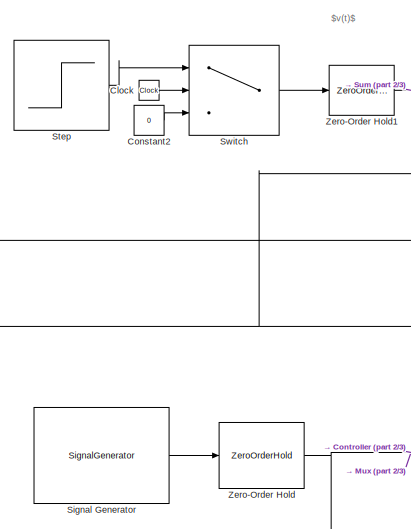
[diagram: root canvas - part 1/3, top left region]
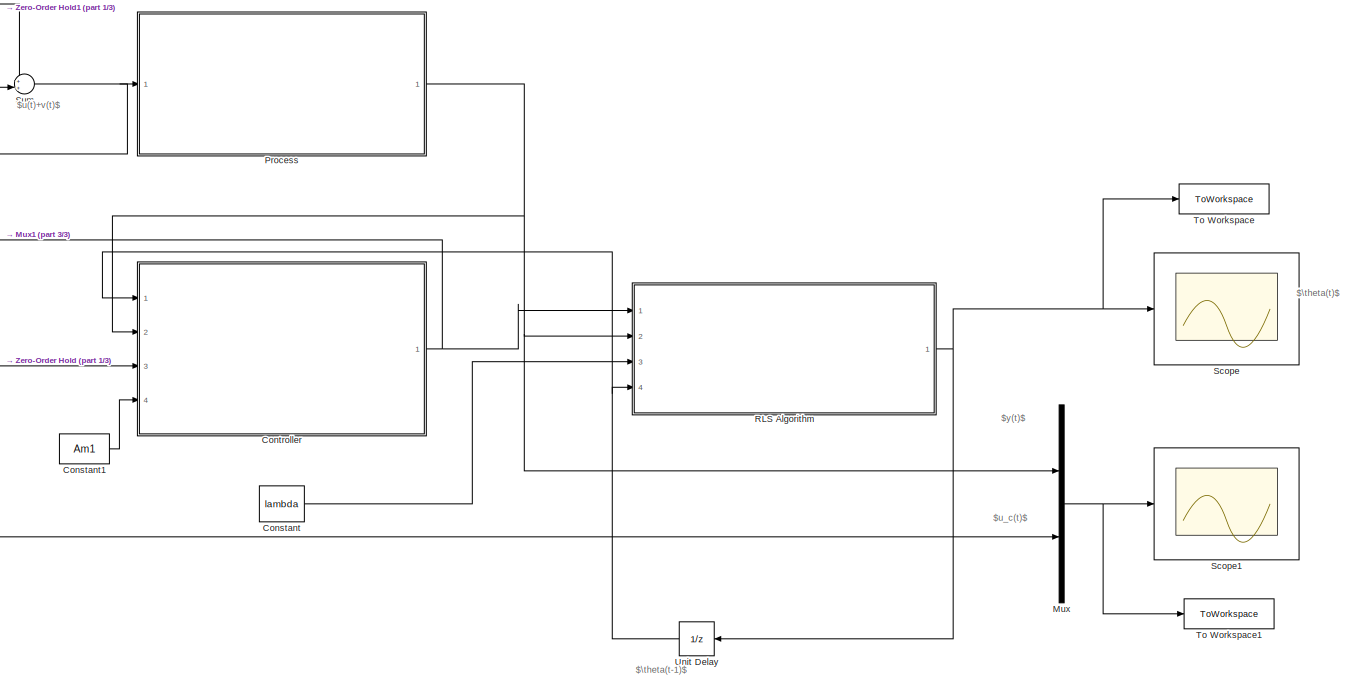
[diagram: root canvas - part 2/3, central region]
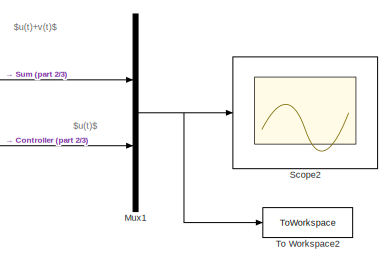
[diagram: root canvas - part 3/3, bottom right region]
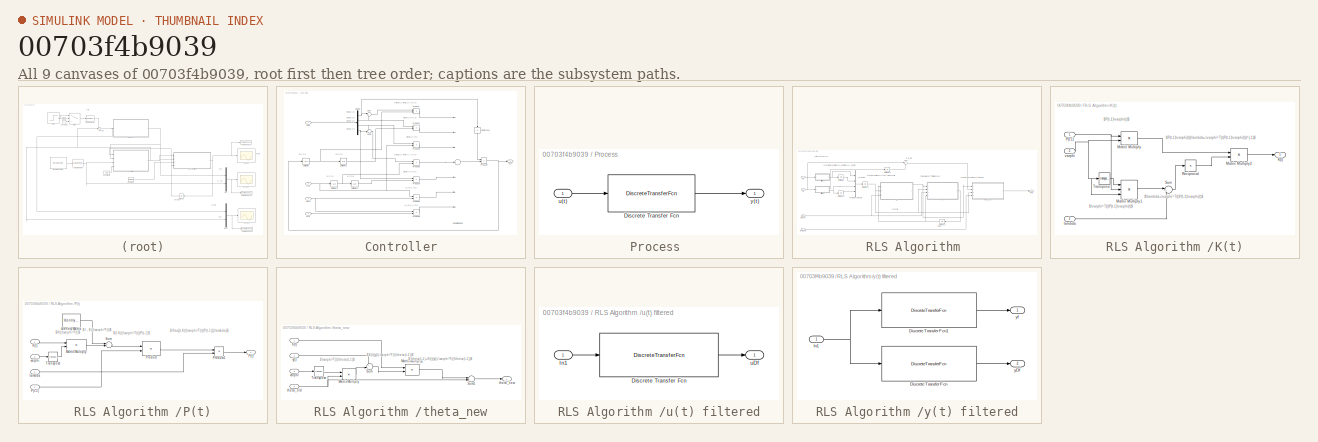
[diagram: thumbnail index - all 9 canvases of the model, root first then tree order]
MODEL slx_00703f4b9039
KIND model
CONFIG AbsTol = auto
CONFIG EnableMultiTasking = off
CONFIG FixedStep = auto
CONFIG MaxStep = auto
CONFIG MinStep = auto
CONFIG RelTol = 1e-3
CONFIG SampleTimeConstraint = Unconstrained
CONFIG Solver = VariableStepAuto
CONFIG SolverName = VariableStepAuto
CONFIG StartTime = 0.0
CONFIG StopTime = 200
BLOCK [Clock] Clock
BLOCK [Constant] Constant
  Value = lambda
BLOCK [Constant] Constant1
  Value = Am1
BLOCK [Constant] Constant2
  Value = 0
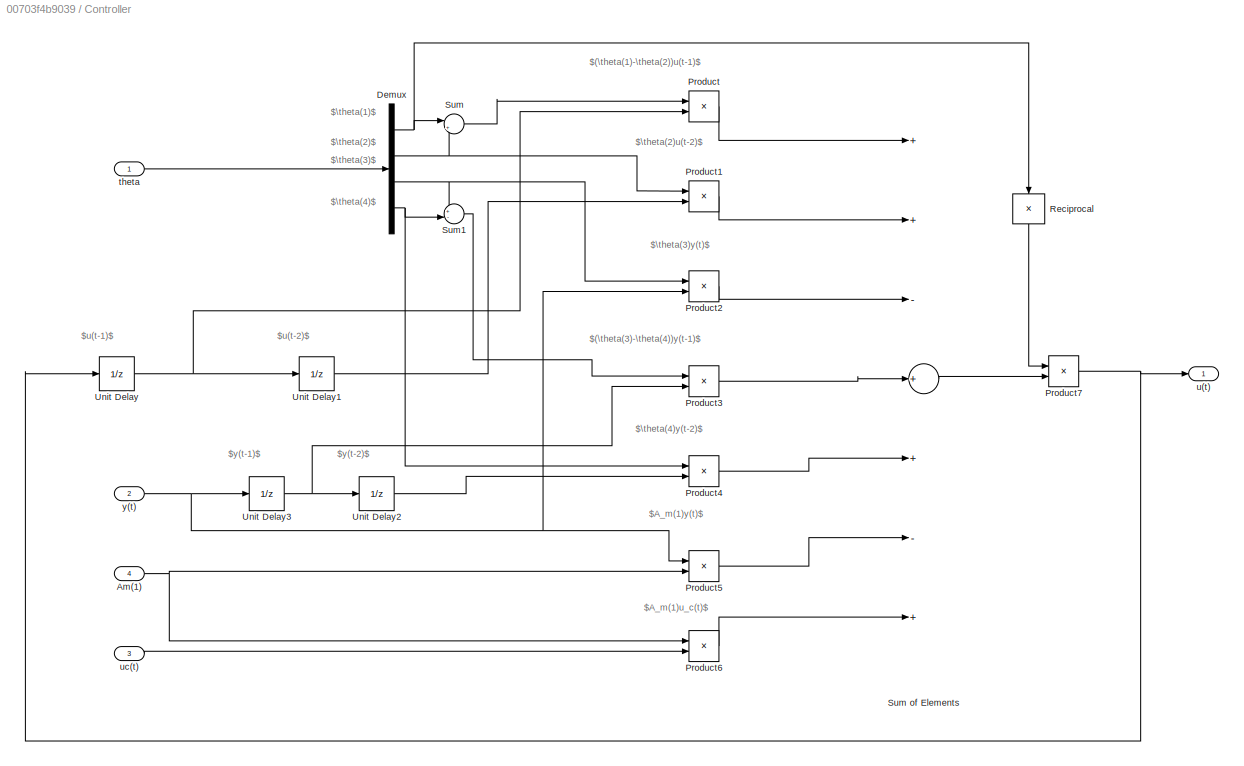
BLOCK [SubSystem] Controller
  Ports = [4, 1]
  RequestExecContextInheritance = off
BLOCK [Inport] Controller/Am(1)
  IconDisplay = Port number
  Port = 4
BLOCK [Demux] Controller/Demux
  DisplayOption = bar
  Ports = [1, 4]
BLOCK [Product] Controller/Product
  InputSameDT = off
  OutDataTypeStr = Inherit: Inherit via internal rule
  Ports = [2, 1]
  RndMeth = Floor
  SaturateOnIntegerOverflow = off
BLOCK [Product] Controller/Product1
  InputSameDT = off
  OutDataTypeStr = Inherit: Inherit via internal rule
  Ports = [2, 1]
  RndMeth = Floor
  SaturateOnIntegerOverflow = off
BLOCK [Product] Controller/Product2
  InputSameDT = off
  OutDataTypeStr = Inherit: Inherit via internal rule
  Ports = [2, 1]
  RndMeth = Floor
  SaturateOnIntegerOverflow = off
BLOCK [Product] Controller/Product3
  InputSameDT = off
  OutDataTypeStr = Inherit: Inherit via internal rule
  Ports = [2, 1]
  RndMeth = Floor
  SaturateOnIntegerOverflow = off
BLOCK [Product] Controller/Product4
  InputSameDT = off
  OutDataTypeStr = Inherit: Inherit via internal rule
  Ports = [2, 1]
  RndMeth = Floor
  SaturateOnIntegerOverflow = off
BLOCK [Product] Controller/Product5
  InputSameDT = off
  OutDataTypeStr = Inherit: Inherit via internal rule
  Ports = [2, 1]
  RndMeth = Floor
  SaturateOnIntegerOverflow = off
BLOCK [Product] Controller/Product6
  InputSameDT = off
  OutDataTypeStr = Inherit: Inherit via internal rule
  Ports = [2, 1]
  RndMeth = Floor
  SaturateOnIntegerOverflow = off
BLOCK [Product] Controller/Product7
  InputSameDT = off
  OutDataTypeStr = Inherit: Inherit via internal rule
  Ports = [2, 1]
  RndMeth = Floor
  SaturateOnIntegerOverflow = off
BLOCK [Product] Controller/Reciprocal
  InputSameDT = off
  Inputs = /
  OutDataTypeStr = Inherit: Inherit via internal rule
  Ports = [1, 1]
  RndMeth = Floor
  SaturateOnIntegerOverflow = off
BLOCK [Sum] Controller/Sum
  IconShape = round
  InputSameDT = off
  Inputs = |+-
  OutDataTypeStr = Inherit: Inherit via internal rule
  Ports = [2, 1]
  SaturateOnIntegerOverflow = off
BLOCK [Sum] Controller/Sum of Elements
  InputSameDT = off
  Inputs = ++-++-+
  OutDataTypeStr = Inherit: Inherit via internal rule
  Ports = [7, 1]
  SaturateOnIntegerOverflow = off
BLOCK [Sum] Controller/Sum1
  IconShape = round
  InputSameDT = off
  Inputs = +-|
  OutDataTypeStr = Inherit: Inherit via internal rule
  Ports = [2, 1]
  SaturateOnIntegerOverflow = off
BLOCK [UnitDelay] Controller/Unit Delay
  HasFrameUpgradeWarning = on
  SampleTime = -1
BLOCK [UnitDelay] Controller/Unit Delay1
  HasFrameUpgradeWarning = on
  SampleTime = -1
BLOCK [UnitDelay] Controller/Unit Delay2
  HasFrameUpgradeWarning = on
  SampleTime = -1
BLOCK [UnitDelay] Controller/Unit Delay3
  HasFrameUpgradeWarning = on
  SampleTime = -1
BLOCK [Inport] Controller/theta
  IconDisplay = Port number
BLOCK [Outport] Controller/u(t)
  IconDisplay = Port number
BLOCK [Inport] Controller/uc(t)
  IconDisplay = Port number
  Port = 3
BLOCK [Inport] Controller/y(t)
  IconDisplay = Port number
  Port = 2
BLOCK [Mux] Mux
  DisplayOption = bar
  Inputs = 2
  Ports = [2, 1]
BLOCK [Mux] Mux1
  DisplayOption = bar
  Inputs = 2
  Ports = [2, 1]
BLOCK [SubSystem] Process 
  Ports = [1, 1]
  RequestExecContextInheritance = off
BLOCK [DiscreteTransferFcn] Process /Discrete Transfer Fcn
  Denominator = [1 -1.6065 0.6065]
  InputPortMap = u0
  Numerator = [0.1065 0.0902]
  Ports = [1, 1]
BLOCK [Inport] Process /u(t)
  IconDisplay = Port number
BLOCK [Outport] Process /y(t)
  IconDisplay = Port number
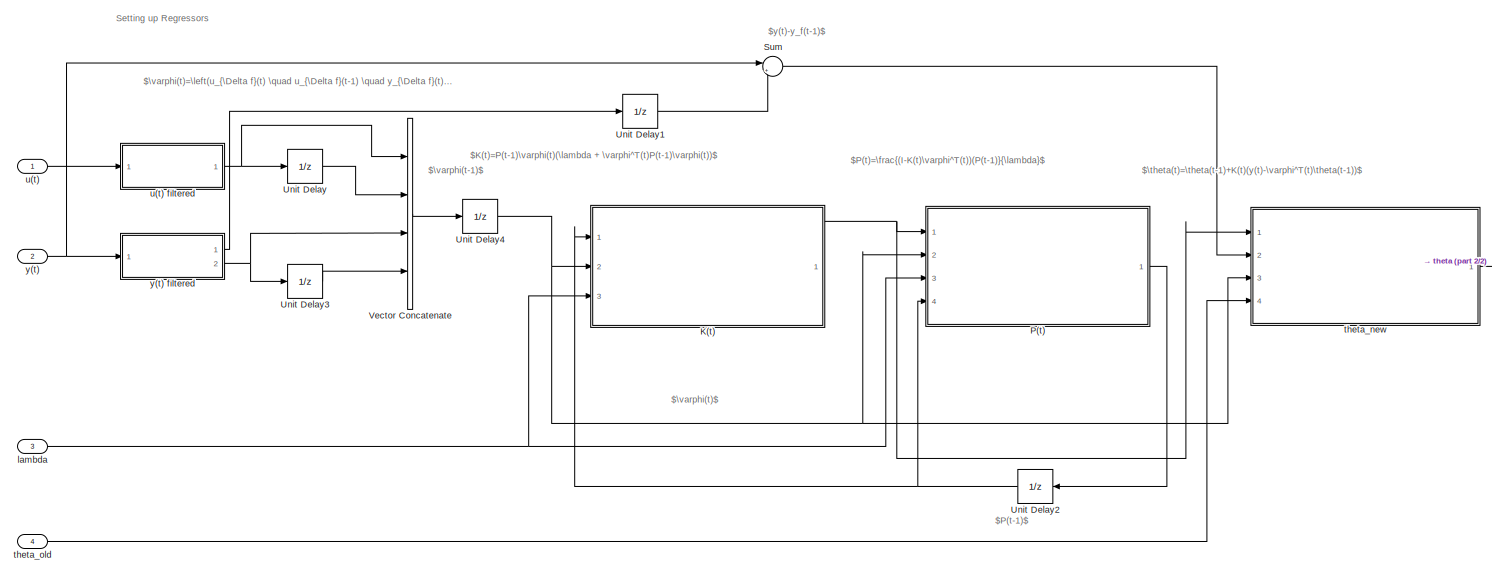
[diagram: RLS Algorithm  - part 1/2, most of the canvas]
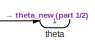
[diagram: RLS Algorithm  - part 2/2, middle right region]
BLOCK [SubSystem] RLS Algorithm 
  Ports = [4, 1]
  RequestExecContextInheritance = off
BLOCK [SubSystem] RLS Algorithm /K(t)
  Ports = [3, 1]
  RequestExecContextInheritance = off
BLOCK [Outport] RLS Algorithm /K(t)/K(t)
  IconDisplay = Port number
BLOCK [Product] RLS Algorithm /K(t)/Matrix Multiply
  InputSameDT = off
  Multiplication = Matrix(*)
  OutDataTypeStr = Inherit: Inherit via internal rule
  Ports = [2, 1]
  RndMeth = Floor
  SaturateOnIntegerOverflow = off
BLOCK [Product] RLS Algorithm /K(t)/Matrix Multiply1
  InputSameDT = off
  Inputs = 3
  Multiplication = Matrix(*)
  OutDataTypeStr = Inherit: Inherit via internal rule
  Ports = [3, 1]
  RndMeth = Floor
  SaturateOnIntegerOverflow = off
BLOCK [Product] RLS Algorithm /K(t)/Matrix Multiply2
  InputSameDT = off
  Multiplication = Matrix(*)
  OutDataTypeStr = Inherit: Inherit via internal rule
  Ports = [2, 1]
  RndMeth = Floor
  SaturateOnIntegerOverflow = off
BLOCK [Inport] RLS Algorithm /K(t)/P(t-1)
  IconDisplay = Port number
BLOCK [Product] RLS Algorithm /K(t)/Reciprocal
  InputSameDT = off
  Inputs = /
  Multiplication = Matrix(*)
  OutDataTypeStr = Inherit: Inherit via internal rule
  Ports = [1, 1]
BLOCK [Sum] RLS Algorithm /K(t)/Sum
  IconShape = round
  InputSameDT = off
  Inputs = |++
  OutDataTypeStr = Inherit: Inherit via internal rule
  Ports = [2, 1]
  SaturateOnIntegerOverflow = off
BLOCK [Math] RLS Algorithm /K(t)/Transpose
  Operator = transpose
  Ports = [1, 1]
  SignedPower = off
BLOCK [Inport] RLS Algorithm /K(t)/lambda
  IconDisplay = Port number
  Port = 3
BLOCK [Inport] RLS Algorithm /K(t)/varphi
  IconDisplay = Port number
  Port = 2
BLOCK [SubSystem] RLS Algorithm /P(t)
  Ports = [4, 1]
  RequestExecContextInheritance = off
BLOCK [Reference] RLS Algorithm /P(t)/Identity Matrix  REF=dspmtrx3/Identity Matrix
  Ports = [0, 1]
  SourceBlock = dspmtrx3/Identity Matrix
  SourceProductBaseCode = DS
  SourceProductName = DSP System Toolbox
  SourceType = Identity Matrix
BLOCK [Inport] RLS Algorithm /P(t)/K(t)
  IconDisplay = Port number
BLOCK [Product] RLS Algorithm /P(t)/Matrix Multiply
  InputSameDT = off
  Multiplication = Matrix(*)
  OutDataTypeStr = Inherit: Inherit via internal rule
  Ports = [2, 1]
  RndMeth = Floor
  SaturateOnIntegerOverflow = off
BLOCK [Outport] RLS Algorithm /P(t)/P(t)
  IconDisplay = Port number
BLOCK [Inport] RLS Algorithm /P(t)/P(t-1)
  IconDisplay = Port number
  Port = 4
BLOCK [Product] RLS Algorithm /P(t)/Product
  InputSameDT = off
  Multiplication = Matrix(*)
  OutDataTypeStr = Inherit: Inherit via internal rule
  Ports = [2, 1]
  RndMeth = Floor
  SaturateOnIntegerOverflow = off
BLOCK [Product] RLS Algorithm /P(t)/Product1
  InputSameDT = off
  Inputs = */
  OutDataTypeStr = Inherit: Inherit via internal rule
  Ports = [2, 1]
  RndMeth = Floor
  SaturateOnIntegerOverflow = off
BLOCK [Sum] RLS Algorithm /P(t)/Sum
  IconShape = round
  InputSameDT = off
  Inputs = +-|
  OutDataTypeStr = Inherit: Inherit via internal rule
  Ports = [2, 1]
  SaturateOnIntegerOverflow = off
BLOCK [Math] RLS Algorithm /P(t)/Transpose
  Operator = transpose
  Ports = [1, 1]
  SignedPower = off
BLOCK [Inport] RLS Algorithm /P(t)/lambda
  IconDisplay = Port number
  Port = 3
BLOCK [Inport] RLS Algorithm /P(t)/varphi
  IconDisplay = Port number
  Port = 2
BLOCK [Sum] RLS Algorithm /Sum
  IconShape = round
  InputSameDT = off
  Inputs = |+-
  OutDataTypeStr = Inherit: Inherit via internal rule
  Ports = [2, 1]
  SaturateOnIntegerOverflow = off
BLOCK [UnitDelay] RLS Algorithm /Unit Delay
  HasFrameUpgradeWarning = on
  SampleTime = -1
BLOCK [UnitDelay] RLS Algorithm /Unit Delay1
  HasFrameUpgradeWarning = on
  SampleTime = -1
BLOCK [UnitDelay] RLS Algorithm /Unit Delay2
  HasFrameUpgradeWarning = on
  InitialCondition = P_0
  SampleTime = -1
BLOCK [UnitDelay] RLS Algorithm /Unit Delay3
  HasFrameUpgradeWarning = on
  SampleTime = -1
BLOCK [UnitDelay] RLS Algorithm /Unit Delay4
  HasFrameUpgradeWarning = on
  SampleTime = -1
BLOCK [Concatenate] RLS Algorithm /Vector Concatenate
  NumInputs = 4
  Ports = [4, 1]
BLOCK [Inport] RLS Algorithm /lambda
  IconDisplay = Port number
  Port = 3
BLOCK [Outport] RLS Algorithm /theta
  IconDisplay = Port number
BLOCK [SubSystem] RLS Algorithm /theta_new
  Ports = [4, 1]
  RequestExecContextInheritance = off
BLOCK [Inport] RLS Algorithm /theta_new/K(t)
  IconDisplay = Port number
BLOCK [Product] RLS Algorithm /theta_new/Matrix Multiply
  InputSameDT = off
  Multiplication = Matrix(*)
  OutDataTypeStr = Inherit: Inherit via internal rule
  Ports = [2, 1]
  RndMeth = Floor
  SaturateOnIntegerOverflow = off
BLOCK [Product] RLS Algorithm /theta_new/Matrix Multiply1
  InputSameDT = off
  Multiplication = Matrix(*)
  OutDataTypeStr = Inherit: Inherit via internal rule
  Ports = [2, 1]
  RndMeth = Floor
  SaturateOnIntegerOverflow = off
BLOCK [Sum] RLS Algorithm /theta_new/Sum
  IconShape = round
  InputSameDT = off
  Inputs = +|-
  OutDataTypeStr = Inherit: Inherit via internal rule
  Ports = [2, 1]
  SaturateOnIntegerOverflow = off
BLOCK [Sum] RLS Algorithm /theta_new/Sum1
  IconShape = round
  InputSameDT = off
  Inputs = |++
  OutDataTypeStr = Inherit: Inherit via internal rule
  Ports = [2, 1]
  SaturateOnIntegerOverflow = off
BLOCK [Math] RLS Algorithm /theta_new/Transpose
  Operator = transpose
  Ports = [1, 1]
  SignedPower = off
BLOCK [Outport] RLS Algorithm /theta_new/theta_new
  IconDisplay = Port number
BLOCK [Inport] RLS Algorithm /theta_new/theta_old
  IconDisplay = Port number
  Port = 4
BLOCK [Inport] RLS Algorithm /theta_new/varphi
  IconDisplay = Port number
  Port = 3
BLOCK [Inport] RLS Algorithm /theta_new/y(t)
  IconDisplay = Port number
  Port = 2
BLOCK [Inport] RLS Algorithm /theta_old
  IconDisplay = Port number
  Port = 4
BLOCK [Inport] RLS Algorithm /u(t)
  IconDisplay = Port number
BLOCK [SubSystem] RLS Algorithm /u(t) filtered
  Ports = [1, 1]
  RequestExecContextInheritance = off
BLOCK [DiscreteTransferFcn] RLS Algorithm /u(t) filtered/Discrete Transfer Fcn
  Denominator = [1 am1 am2]
  InputPortMap = u0
  Numerator = [1 -1 0]
  Ports = [1, 1]
BLOCK [Inport] RLS Algorithm /u(t) filtered/In1
  IconDisplay = Port number
BLOCK [Outport] RLS Algorithm /u(t) filtered/uDf
  IconDisplay = Port number
BLOCK [Inport] RLS Algorithm /y(t)
  IconDisplay = Port number
  Port = 2
BLOCK [SubSystem] RLS Algorithm /y(t) filtered
  Ports = [1, 2]
  RequestExecContextInheritance = off
BLOCK [DiscreteTransferFcn] RLS Algorithm /y(t) filtered/Discrete Transfer Fcn
  Denominator = [1 am1 am2]
  InputPortMap = u0
  Numerator = [1 -1 0]
  Ports = [1, 1]
BLOCK [DiscreteTransferFcn] RLS Algorithm /y(t) filtered/Discrete Transfer Fcn1
  Denominator = [1 am1 am2]
  InputPortMap = u0
  Numerator = [Am1 0 0]
  Ports = [1, 1]
BLOCK [Inport] RLS Algorithm /y(t) filtered/In1
  IconDisplay = Port number
BLOCK [Outport] RLS Algorithm /y(t) filtered/yDf
  IconDisplay = Port number
  Port = 2
BLOCK [Outport] RLS Algorithm /y(t) filtered/yf
  IconDisplay = Port number
BLOCK [Scope] Scope
  Floating = off
  NumInputPorts = 1
  Ports = [1]
  ScopeSpecificationString = Simulink.scopes.TimeScopeBlockCfg('CurrentConfiguration', extmgr.ConfigurationSet(extmgr.Configuration('Core','General UI',true),extmgr.Configuration('Core','Source UI',true),extmgr.Configuration('Sources','WiredSimulink',true),extmgr.Configuration('Visuals','Time Domain',true,'SerializedDisplays',{struct('MinYLimReal','-2','MaxYLimReal','2','YLabelReal','','MinYLimMag','0.00000','MaxYLimMag','1.5...<+1415ch>
BLOCK [Scope] Scope1
  Floating = off
  NumInputPorts = 1
  Ports = [1]
  ScopeSpecificationString = Simulink.scopes.TimeScopeBlockCfg('CurrentConfiguration', extmgr.ConfigurationSet(extmgr.Configuration('Core','General UI',true),extmgr.Configuration('Core','Source UI',true),extmgr.Configuration('Sources','WiredSimulink',true,'DataLoggingVariableName','ScopeData1'),extmgr.Configuration('Visuals','Time Domain',true,'SerializedDisplays',{struct('MinYLimReal','-2','MaxYLimReal','2','YLabelReal','','...<+1434ch>
BLOCK [Scope] Scope2
  Floating = off
  NumInputPorts = 1
  Ports = [1]
  ScopeSpecificationString = Simulink.scopes.TimeScopeBlockCfg('CurrentConfiguration', extmgr.ConfigurationSet(extmgr.Configuration('Core','General UI',true),extmgr.Configuration('Core','Source UI',true),extmgr.Configuration('Sources','WiredSimulink',true,'DataLoggingVariableName','ScopeData1'),extmgr.Configuration('Visuals','Time Domain',true,'SerializedDisplays',{struct('MinYLimReal','-40','MaxYLimReal','40','YLabelReal',''...<+1432ch>
BLOCK [SignalGenerator] Signal Generator
  Amplitude = -1
  Frequency = 1/40
  Ports = [0, 1]
  WaveForm = square
BLOCK [Step] Step
  SampleTime = Ts
  ZeroCross = off
BLOCK [Sum] Sum
  IconShape = round
  InputSameDT = off
  Inputs = ++|
  OutDataTypeStr = Inherit: Inherit via internal rule
  Ports = [2, 1]
  SaturateOnIntegerOverflow = off
BLOCK [Switch] Switch
  InputSameDT = off
  SaturateOnIntegerOverflow = off
  Threshold = 30
BLOCK [ToWorkspace] To Workspace
  FixptAsFi = on
  MaxDataPoints = inf
  Ports = [1]
  SampleTime = -1
  SaveFormat = Timeseries
  VariableName = simout
BLOCK [ToWorkspace] To Workspace1
  FixptAsFi = on
  MaxDataPoints = inf
  Ports = [1]
  SampleTime = -1
  SaveFormat = Timeseries
  VariableName = simout1
BLOCK [ToWorkspace] To Workspace2
  FixptAsFi = on
  MaxDataPoints = inf
  Ports = [1]
  SampleTime = -1
  SaveFormat = Timeseries
  VariableName = simout2
BLOCK [UnitDelay] Unit Delay
  HasFrameUpgradeWarning = on
  InitialCondition = theta_init
  SampleTime = -1
BLOCK [ZeroOrderHold] Zero-Order Hold
  SampleTime = Ts
BLOCK [ZeroOrderHold] Zero-Order Hold1
  SampleTime = Ts
ANNOTATION (root): $\theta(t)$
ANNOTATION (root): $\theta(t-1)$
ANNOTATION (root): $u(t)$
ANNOTATION (root): $u(t)+v(t)$
ANNOTATION (root): $u_c(t)$
ANNOTATION (root): $v(t)$
ANNOTATION (root): $y(t)$
ANNOTATION Controller: $\theta(1)$
ANNOTATION Controller: $\theta(2)$
ANNOTATION Controller: $\theta(3)$
ANNOTATION Controller: $\theta(4)$
ANNOTATION Controller: $u(t-1)$
ANNOTATION Controller: $(\theta(1)-\theta(2))u(t-1)$
ANNOTATION Controller: $(\theta(3)-\theta(4))y(t-1)$
ANNOTATION Controller: $A_m(1)u_c(t)$
ANNOTATION Controller: $A_m(1)y(t)$
ANNOTATION Controller: $\theta(2)u(t-2)$
ANNOTATION Controller: $\theta(3)y(t)$
ANNOTATION Controller: $\theta(4)y(t-2)$
ANNOTATION Controller: $u(t-2)$
ANNOTATION Controller: $y(t-1)$
ANNOTATION Controller: $y(t-2)$
ANNOTATION RLS Algorithm : Setting up Regressors
ANNOTATION RLS Algorithm : $\varphi(t)=\left(u_{\Delta f}(t) \quad u_{\Delta f}(t-1) \quad y_{\Delta f}(t) \quad y_{\Delta f}(t-1)\right)^T$
ANNOTATION RLS Algorithm : $K(t)=P(t-1)\varphi(t)(\lambda + \varphi^T(t)P(t-1)\varphi(t))$
ANNOTATION RLS Algorithm : $P(t)=\frac{(I-K(t)\varphi^T(t))(P(t-1)}{\lambda}$
ANNOTATION RLS Algorithm : $P(t-1)$
ANNOTATION RLS Algorithm : $\theta(t)=\theta(t-1)+K(t)(y(t)-\varphi^T(t)\theta(t-1))$
ANNOTATION RLS Algorithm : $\varphi(t)$
ANNOTATION RLS Algorithm : $\varphi(t-1)$
ANNOTATION RLS Algorithm : $y(t)-y_f(t-1)$
ANNOTATION RLS Algorithm /K(t): $P(t-1)\varphi(t)$
ANNOTATION RLS Algorithm /K(t): $P(t-1)\varphi(t)(\lambda+\varphi^T(t)P(t-1)\varphi(t))^{-1}$
ANNOTATION RLS Algorithm /K(t): $\lambda+\varphi^T(t)P(t-1)\varphi(t)$
ANNOTATION RLS Algorithm /K(t): $\varphi^T(t)P(t-1)\varphi(t)$
ANNOTATION RLS Algorithm /P(t): $(I-K(t)\varphi^T(t))P(t-1)$
ANNOTATION RLS Algorithm /P(t): $I - K(t)\varphi^T(t)$
ANNOTATION RLS Algorithm /P(t): $K(t)\varphi^T(t)$
ANNOTATION RLS Algorithm /P(t): $\frac{(I-K(t)\varphi^T(t))P(t-1)}{\lambda}$
ANNOTATION RLS Algorithm /theta_new: $K(t)(y(t)-\varphi^T(t)\theta(t-1))$
ANNOTATION RLS Algorithm /theta_new: $\theta(t-1)+K(t)(y(t)-\varphi^T(t)\theta(t-1))$
ANNOTATION RLS Algorithm /theta_new: $\varphi^T(t)\theta(t-1)$
LINE Clock:1 -> Switch:2
LINE Constant1:1 -> Controller:4
LINE Constant2:1 -> Switch:3
LINE Constant:1 -> RLS Algorithm :3
NET Controller/Am(1):1 -> Controller/Product5:2, Controller/Product6:1
NET Controller/Demux:1 -> Controller/Reciprocal:1, Controller/Sum:1
NET Controller/Demux:2 -> Controller/Product1:1, Controller/Sum:2
NET Controller/Demux:3 -> Controller/Product2:1, Controller/Sum1:1
NET Controller/Demux:4 -> Controller/Product4:1, Controller/Sum1:2
LINE Controller/Product1:1 -> Controller/Sum of Elements:2
LINE Controller/Product2:1 -> Controller/Sum of Elements:3
LINE Controller/Product3:1 -> Controller/Sum of Elements:4
LINE Controller/Product4:1 -> Controller/Sum of Elements:5
LINE Controller/Product5:1 -> Controller/Sum of Elements:6
LINE Controller/Product6:1 -> Controller/Sum of Elements:7
NET Controller/Product7:1 -> Controller/Unit Delay:1, Controller/u(t):1
LINE Controller/Product:1 -> Controller/Sum of Elements:1
LINE Controller/Reciprocal:1 -> Controller/Product7:1
LINE Controller/Sum of Elements:1 -> Controller/Product7:2
LINE Controller/Sum1:1 -> Controller/Product3:1
LINE Controller/Sum:1 -> Controller/Product:1
LINE Controller/Unit Delay1:1 -> Controller/Product1:2
LINE Controller/Unit Delay2:1 -> Controller/Product4:2
NET Controller/Unit Delay3:1 -> Controller/Product3:2, Controller/Unit Delay2:1
NET Controller/Unit Delay:1 -> Controller/Product:2, Controller/Unit Delay1:1
LINE Controller/theta:1 -> Controller/Demux:1
LINE Controller/uc(t):1 -> Controller/Product6:2
NET Controller/y(t):1 -> Controller/Product2:2, Controller/Product5:1, Controller/Unit Delay3:1
NET Controller:1 -> Mux1:2, RLS Algorithm :1, Sum:2
NET Mux1:1 -> Scope2:1, To Workspace2:1
NET Mux:1 -> Scope1:1, To Workspace1:1
LINE Process /Discrete Transfer Fcn:1 -> Process /y(t):1
LINE Process /u(t):1 -> Process /Discrete Transfer Fcn:1
NET Process :1 -> Controller:2, Mux:1, RLS Algorithm :2
LINE RLS Algorithm /K(t)/Matrix Multiply1:1 -> RLS Algorithm /K(t)/Sum:1
LINE RLS Algorithm /K(t)/Matrix Multiply2:1 -> RLS Algorithm /K(t)/K(t):1
LINE RLS Algorithm /K(t)/Matrix Multiply:1 -> RLS Algorithm /K(t)/Matrix Multiply2:1
NET RLS Algorithm /K(t)/P(t-1):1 -> RLS Algorithm /K(t)/Matrix Multiply1:2, RLS Algorithm /K(t)/Matrix Multiply:1
LINE RLS Algorithm /K(t)/Reciprocal:1 -> RLS Algorithm /K(t)/Matrix Multiply2:2
LINE RLS Algorithm /K(t)/Sum:1 -> RLS Algorithm /K(t)/Reciprocal:1
LINE RLS Algorithm /K(t)/Transpose:1 -> RLS Algorithm /K(t)/Matrix Multiply1:1
LINE RLS Algorithm /K(t)/lambda:1 -> RLS Algorithm /K(t)/Sum:2
NET RLS Algorithm /K(t)/varphi:1 -> RLS Algorithm /K(t)/Matrix Multiply1:3, RLS Algorithm /K(t)/Matrix Multiply:2, RLS Algorithm /K(t)/Transpose:1
NET RLS Algorithm /K(t):1 -> RLS Algorithm /P(t):1, RLS Algorithm /theta_new:1
LINE RLS Algorithm /P(t)/Identity Matrix:1 -> RLS Algorithm /P(t)/Sum:1
LINE RLS Algorithm /P(t)/K(t):1 -> RLS Algorithm /P(t)/Matrix Multiply:1
LINE RLS Algorithm /P(t)/Matrix Multiply:1 -> RLS Algorithm /P(t)/Sum:2
LINE RLS Algorithm /P(t)/P(t-1):1 -> RLS Algorithm /P(t)/Product:2
LINE RLS Algorithm /P(t)/Product1:1 -> RLS Algorithm /P(t)/P(t):1
LINE RLS Algorithm /P(t)/Product:1 -> RLS Algorithm /P(t)/Product1:1
LINE RLS Algorithm /P(t)/Sum:1 -> RLS Algorithm /P(t)/Product:1
LINE RLS Algorithm /P(t)/Transpose:1 -> RLS Algorithm /P(t)/Matrix Multiply:2
LINE RLS Algorithm /P(t)/lambda:1 -> RLS Algorithm /P(t)/Product1:2
LINE RLS Algorithm /P(t)/varphi:1 -> RLS Algorithm /P(t)/Transpose:1
LINE RLS Algorithm /P(t):1 -> RLS Algorithm /Unit Delay2:1
LINE RLS Algorithm /Sum:1 -> RLS Algorithm /theta_new:2
LINE RLS Algorithm /Unit Delay1:1 -> RLS Algorithm /Sum:2
NET RLS Algorithm /Unit Delay2:1 -> RLS Algorithm /K(t):1, RLS Algorithm /P(t):4
LINE RLS Algorithm /Unit Delay3:1 -> RLS Algorithm /Vector Concatenate:4
NET RLS Algorithm /Unit Delay4:1 -> RLS Algorithm /K(t):2, RLS Algorithm /P(t):2, RLS Algorithm /theta_new:3
LINE RLS Algorithm /Unit Delay:1 -> RLS Algorithm /Vector Concatenate:2
LINE RLS Algorithm /Vector Concatenate:1 -> RLS Algorithm /Unit Delay4:1
NET RLS Algorithm /lambda:1 -> RLS Algorithm /K(t):3, RLS Algorithm /P(t):3
LINE RLS Algorithm /theta_new/K(t):1 -> RLS Algorithm /theta_new/Matrix Multiply1:1
LINE RLS Algorithm /theta_new/Matrix Multiply1:1 -> RLS Algorithm /theta_new/Sum1:1
LINE RLS Algorithm /theta_new/Matrix Multiply:1 -> RLS Algorithm /theta_new/Sum:2
LINE RLS Algorithm /theta_new/Sum1:1 -> RLS Algorithm /theta_new/theta_new:1
LINE RLS Algorithm /theta_new/Sum:1 -> RLS Algorithm /theta_new/Matrix Multiply1:2
LINE RLS Algorithm /theta_new/Transpose:1 -> RLS Algorithm /theta_new/Matrix Multiply:1
NET RLS Algorithm /theta_new/theta_old:1 -> RLS Algorithm /theta_new/Matrix Multiply:2, RLS Algorithm /theta_new/Sum1:2
LINE RLS Algorithm /theta_new/varphi:1 -> RLS Algorithm /theta_new/Transpose:1
LINE RLS Algorithm /theta_new/y(t):1 -> RLS Algorithm /theta_new/Sum:1
LINE RLS Algorithm /theta_new:1 -> RLS Algorithm /theta:1
LINE RLS Algorithm /theta_old:1 -> RLS Algorithm /theta_new:4
LINE RLS Algorithm /u(t) filtered/Discrete Transfer Fcn:1 -> RLS Algorithm /u(t) filtered/uDf:1
LINE RLS Algorithm /u(t) filtered/In1:1 -> RLS Algorithm /u(t) filtered/Discrete Transfer Fcn:1
NET RLS Algorithm /u(t) filtered:1 -> RLS Algorithm /Unit Delay:1, RLS Algorithm /Vector Concatenate:1
LINE RLS Algorithm /u(t):1 -> RLS Algorithm /u(t) filtered:1
LINE RLS Algorithm /y(t) filtered/Discrete Transfer Fcn1:1 -> RLS Algorithm /y(t) filtered/yf:1
LINE RLS Algorithm /y(t) filtered/Discrete Transfer Fcn:1 -> RLS Algorithm /y(t) filtered/yDf:1
NET RLS Algorithm /y(t) filtered/In1:1 -> RLS Algorithm /y(t) filtered/Discrete Transfer Fcn1:1, RLS Algorithm /y(t) filtered/Discrete Transfer Fcn:1
LINE RLS Algorithm /y(t) filtered:1 -> RLS Algorithm /Unit Delay1:1
NET RLS Algorithm /y(t) filtered:2 -> RLS Algorithm /Unit Delay3:1, RLS Algorithm /Vector Concatenate:3
NET RLS Algorithm /y(t):1 -> RLS Algorithm /Sum:1, RLS Algorithm /y(t) filtered:1
NET RLS Algorithm :1 -> Scope:1, To Workspace:1, Unit Delay:1
LINE Signal Generator:1 -> Zero-Order Hold:1
LINE Step:1 -> Switch:1
NET Sum:1 -> Mux1:1, Process :1
LINE Switch:1 -> Zero-Order Hold1:1
NET Unit Delay:1 -> Controller:1, RLS Algorithm :4
LINE Zero-Order Hold1:1 -> Sum:1
NET Zero-Order Hold:1 -> Controller:3, Mux:2
note: NET lines group one-source signal fan-out (src -> all destinations, sorted); 1:1 wires keep LINE
